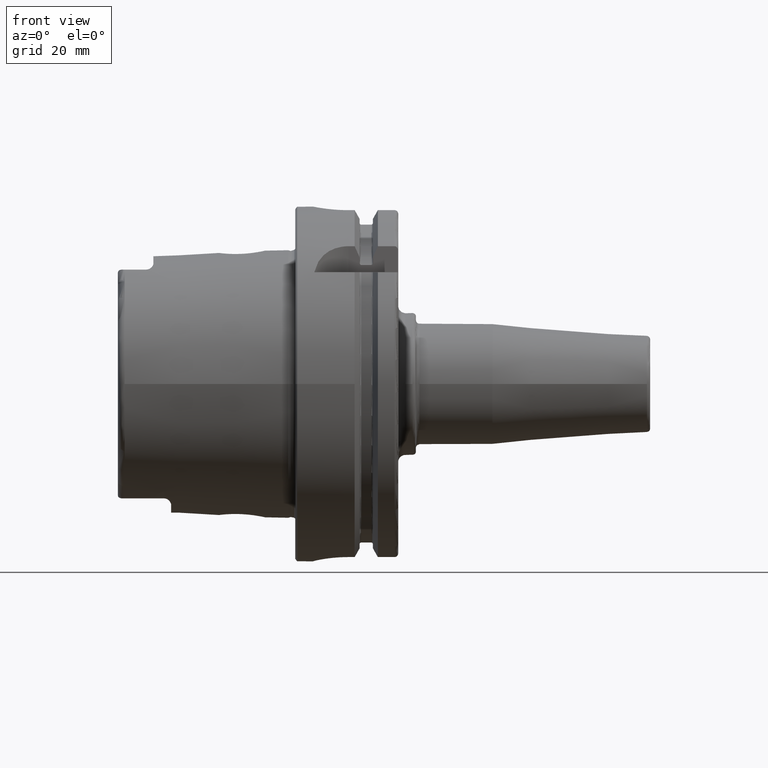
[diagram: clean part render]
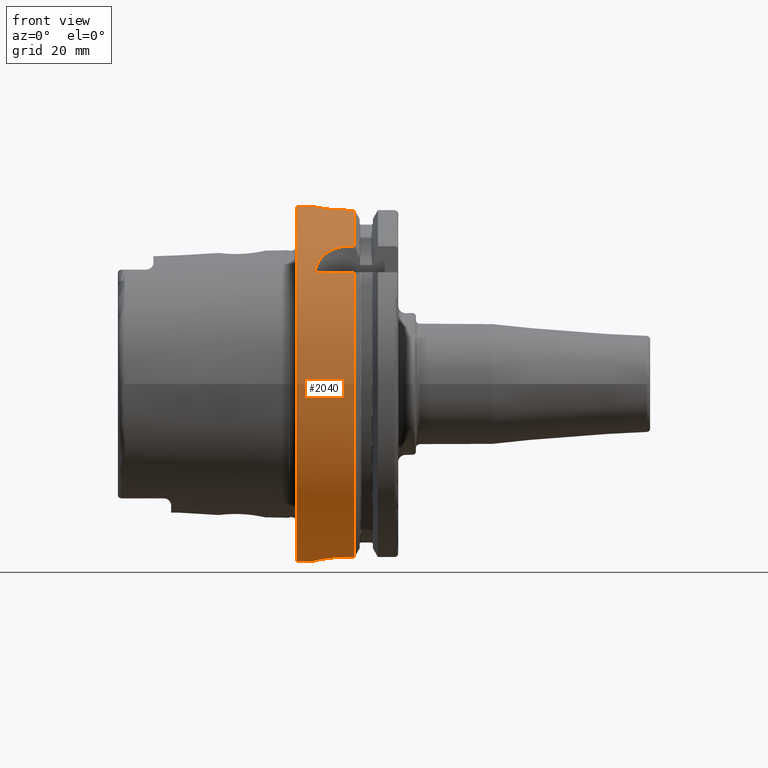
[diagram: same view with one face highlighted and labeled with its STEP entity id]
A machine part, front view. The second image highlights one B-rep face of the part: STEP entity #2040.
In plain terms, the highlighted cylindrical surface (bore or boss wall) has radius 50 mm, axis along (1, 0, 0).
Its self-contained STEP definition (entity closure, byte-faithful):
#56=B_SPLINE_CURVE_WITH_KNOTS('',3,(#3890,#3891,#3892,#3893,#3894,#3895,
#3896,#3897,#3898,#3899,#3900,#3901,#3902,#3903,#3904,#3905,#3906,#3907,
#3908,#3909,#3910,#3911,#3912,#3913,#3914,#3915),.UNSPECIFIED.,.F.,.F.,
(4,2,2,2,2,2,2,2,2,2,2,2,4),(0.,0.188478911015149,0.376957822030298,0.565436091508923,
0.753914360987547,0.942392630466172,1.1308708999448,1.31934981095995,1.50782872197509,
1.69630763299024,1.88478654400539,2.07326481348402,2.26174308296264),
 .UNSPECIFIED.);
#57=B_SPLINE_CURVE_WITH_KNOTS('',3,(#3916,#3917,#3918,#3919,#3920,#3921,
#3922,#3923,#3924,#3925),.UNSPECIFIED.,.F.,.F.,(4,2,2,2,4),(2.26174308296264,
2.45022135244127,2.63869962191989,2.82717853293504,3.01565744395019),
 .UNSPECIFIED.);
#58=B_SPLINE_CURVE_WITH_KNOTS('',3,(#3929,#3930,#3931,#3932,#3933,#3934,
#3935,#3936,#3937,#3938,#3939,#3940),.UNSPECIFIED.,.F.,.F.,(4,2,2,2,2,4),
(1.13213255574021,1.59216410027009,1.87572541272146,2.15928672517283,2.38471683342296,
2.61014694167308),.UNSPECIFIED.);
#65=B_SPLINE_CURVE_WITH_KNOTS('',3,(#4053,#4054,#4055,#4056,#4057,#4058,
#4059,#4060,#4061,#4062,#4063,#4064,#4065,#4066,#4067,#4068,#4069,#4070),
 .UNSPECIFIED.,.F.,.F.,(4,2,2,2,2,2,2,2,4),(0.,0.377795255890194,0.755590511780389,
1.13336459804459,1.51113868430879,1.88891277057299,2.26668685683718,2.64448211272738,
3.02227736861757),.UNSPECIFIED.);
#66=B_SPLINE_CURVE_WITH_KNOTS('',3,(#4078,#4079,#4080,#4081,#4082,#4083,
#4084,#4085,#4086,#4087),.UNSPECIFIED.,.F.,.F.,(4,2,2,2,4),(0.,0.377863193874929,
0.755726387749858,1.13417752669663,1.51262866564341),.UNSPECIFIED.);
#67=B_SPLINE_CURVE_WITH_KNOTS('',3,(#4091,#4092,#4093,#4094,#4095,#4096,
#4097,#4098,#4099,#4100),.UNSPECIFIED.,.F.,.F.,(4,2,2,2,4),(1.50996806152532,
1.8884192004721,2.26687033941887,2.6447335332938,3.02259672716873),
 .UNSPECIFIED.);
#94=FACE_BOUND('',#387,.T.);
#190=CYLINDRICAL_SURFACE('',#2251,50.);
#256=FACE_OUTER_BOUND('',#386,.T.);
#386=EDGE_LOOP('',(#1592,#1593,#1594,#1595,#1596,#1597,#1598,#1599,#1600,
#1601,#1602,#1603,#1604,#1605,#1606,#1607,#1608,#1609));
#387=EDGE_LOOP('',(#1610,#1611));
#512=LINE('',#3946,#618);
#518=LINE('',#3998,#624);
#523=LINE('',#4051,#629);
#524=LINE('',#4072,#630);
#525=LINE('',#4076,#631);
#526=LINE('',#4102,#632);
#527=LINE('',#4106,#633);
#618=VECTOR('',#2670,10.);
#624=VECTOR('',#2678,10.);
#629=VECTOR('',#2687,10.);
#630=VECTOR('',#2688,10.);
#631=VECTOR('',#2691,10.);
#632=VECTOR('',#2694,10.);
#633=VECTOR('',#2697,50.);
#739=CIRCLE('',#2252,50.);
#740=CIRCLE('',#2253,50.);
#741=CIRCLE('',#2254,50.);
#742=CIRCLE('',#2255,50.);
#743=CIRCLE('',#2256,50.);
#744=CIRCLE('',#2257,50.);
#918=VERTEX_POINT('',#3887);
#919=VERTEX_POINT('',#3889);
#920=VERTEX_POINT('',#3927);
#921=VERTEX_POINT('',#3928);
#923=VERTEX_POINT('',#3945);
#932=VERTEX_POINT('',#3997);
#941=VERTEX_POINT('',#4048);
#942=VERTEX_POINT('',#4050);
#943=VERTEX_POINT('',#4052);
#944=VERTEX_POINT('',#4071);
#945=VERTEX_POINT('',#4073);
#946=VERTEX_POINT('',#4075);
#947=VERTEX_POINT('',#4077);
#948=VERTEX_POINT('',#4088);
#949=VERTEX_POINT('',#4090);
#950=VERTEX_POINT('',#4101);
#951=VERTEX_POINT('',#4103);
#952=VERTEX_POINT('',#4105);
#1161=EDGE_CURVE('',#919,#918,#56,.T.);
#1162=EDGE_CURVE('',#918,#919,#57,.T.);
#1163=EDGE_CURVE('',#920,#921,#58,.T.);
#1166=EDGE_CURVE('',#921,#923,#512,.T.);
#1177=EDGE_CURVE('',#932,#920,#518,.T.);
#1187=EDGE_CURVE('',#941,#923,#739,.T.);
#1188=EDGE_CURVE('',#941,#942,#523,.T.);
#1189=EDGE_CURVE('',#942,#943,#65,.T.);
#1190=EDGE_CURVE('',#943,#944,#524,.T.);
#1191=EDGE_CURVE('',#945,#944,#740,.T.);
#1192=EDGE_CURVE('',#945,#946,#525,.T.);
#1193=EDGE_CURVE('',#946,#947,#66,.T.);
#1194=EDGE_CURVE('',#947,#948,#741,.T.);
#1195=EDGE_CURVE('',#948,#949,#67,.T.);
#1196=EDGE_CURVE('',#949,#950,#526,.T.);
#1197=EDGE_CURVE('',#951,#950,#742,.T.);
#1198=EDGE_CURVE('',#951,#952,#527,.T.);
#1199=EDGE_CURVE('',#952,#952,#743,.T.);
#1200=EDGE_CURVE('',#932,#951,#744,.T.);
#1592=ORIENTED_EDGE('',*,*,#1177,.T.);
#1593=ORIENTED_EDGE('',*,*,#1163,.T.);
#1594=ORIENTED_EDGE('',*,*,#1166,.T.);
#1595=ORIENTED_EDGE('',*,*,#1187,.F.);
#1596=ORIENTED_EDGE('',*,*,#1188,.T.);
#1597=ORIENTED_EDGE('',*,*,#1189,.T.);
#1598=ORIENTED_EDGE('',*,*,#1190,.T.);
#1599=ORIENTED_EDGE('',*,*,#1191,.F.);
#1600=ORIENTED_EDGE('',*,*,#1192,.T.);
#1601=ORIENTED_EDGE('',*,*,#1193,.T.);
#1602=ORIENTED_EDGE('',*,*,#1194,.T.);
#1603=ORIENTED_EDGE('',*,*,#1195,.T.);
#1604=ORIENTED_EDGE('',*,*,#1196,.T.);
#1605=ORIENTED_EDGE('',*,*,#1197,.F.);
#1606=ORIENTED_EDGE('',*,*,#1198,.T.);
#1607=ORIENTED_EDGE('',*,*,#1199,.T.);
#1608=ORIENTED_EDGE('',*,*,#1198,.F.);
#1609=ORIENTED_EDGE('',*,*,#1200,.F.);
#1610=ORIENTED_EDGE('',*,*,#1161,.T.);
#1611=ORIENTED_EDGE('',*,*,#1162,.T.);
#2040=ADVANCED_FACE('',(#256,#94),#190,.T.);
#2251=AXIS2_PLACEMENT_3D('',#4047,#2683,#2684);
#2252=AXIS2_PLACEMENT_3D('',#4049,#2685,#2686);
#2253=AXIS2_PLACEMENT_3D('',#4074,#2689,#2690);
#2254=AXIS2_PLACEMENT_3D('',#4089,#2692,#2693);
#2255=AXIS2_PLACEMENT_3D('',#4104,#2695,#2696);
#2256=AXIS2_PLACEMENT_3D('',#4107,#2698,#2699);
#2257=AXIS2_PLACEMENT_3D('',#4108,#2700,#2701);
#2670=DIRECTION('',(1.,0.,0.));
#2678=DIRECTION('',(-1.,0.,0.));
#2683=DIRECTION('center_axis',(1.,0.,0.));
#2684=DIRECTION('ref_axis',(0.,1.,0.));
#2685=DIRECTION('center_axis',(1.,0.,0.));
#2686=DIRECTION('ref_axis',(0.,0.,-1.));
#2687=DIRECTION('',(-1.,0.,0.));
#2688=DIRECTION('',(1.,0.,0.));
#2689=DIRECTION('center_axis',(1.,0.,0.));
#2690=DIRECTION('ref_axis',(0.,0.,-1.));
#2691=DIRECTION('',(-1.,0.,0.));
#2692=DIRECTION('center_axis',(-1.,0.,0.));
#2693=DIRECTION('ref_axis',(0.,1.,0.));
#2694=DIRECTION('',(1.,0.,0.));
#2695=DIRECTION('center_axis',(1.,0.,0.));
#2696=DIRECTION('ref_axis',(0.,0.,-1.));
#2697=DIRECTION('',(-1.,0.,0.));
#2698=DIRECTION('center_axis',(1.,0.,0.));
#2699=DIRECTION('ref_axis',(0.,0.,-1.));
#2700=DIRECTION('center_axis',(1.,0.,0.));
#2701=DIRECTION('ref_axis',(0.,0.,-1.));
#3887=CARTESIAN_POINT('',(12.,50.,-6.12323399573677E-16));
#3889=CARTESIAN_POINT('',(6.99999999999999,49.749371855331,5.));
#3890=CARTESIAN_POINT('Ctrl Pts',(6.99999999999999,49.749371855331,5.));
#3891=CARTESIAN_POINT('Ctrl Pts',(6.37173696328283,49.749371855331,5.));
#3892=CARTESIAN_POINT('Ctrl Pts',(5.70188570880885,49.7624993987098,4.87435544587055));
#3893=CARTESIAN_POINT('Ctrl Pts',(4.4701142477173,49.8098541153698,4.36395693611591));
#3894=CARTESIAN_POINT('Ctrl Pts',(3.90815809537484,49.8433908660961,3.97922590724033));
#3895=CARTESIAN_POINT('Ctrl Pts',(3.02077560297968,49.9062957431473,3.09184341484517));
#3896=CARTESIAN_POINT('Ctrl Pts',(2.63604339567929,49.9397591808605,2.52988660036719));
#3897=CARTESIAN_POINT('Ctrl Pts',(2.12564400622109,49.9869460568296,1.29811292154946));
#3898=CARTESIAN_POINT('Ctrl Pts',(1.99999999999999,50.,0.628260898262081));
#3899=CARTESIAN_POINT('Ctrl Pts',(1.99999999999999,50.,-0.628260898262082));
#3900=CARTESIAN_POINT('Ctrl Pts',(2.12564400622109,49.9869460568296,-1.29811292154946));
#3901=CARTESIAN_POINT('Ctrl Pts',(2.63604339567929,49.9397591808605,-2.52988660036719));
#3902=CARTESIAN_POINT('Ctrl Pts',(3.02077560297968,49.9062957431473,-3.09184341484517));
#3903=CARTESIAN_POINT('Ctrl Pts',(3.90815809537484,49.8433908660961,-3.97922590724033));
#3904=CARTESIAN_POINT('Ctrl Pts',(4.4701142477173,49.8098541153698,-4.36395693611591));
#3905=CARTESIAN_POINT('Ctrl Pts',(5.70188570880885,49.7624993987098,-4.87435544587055));
#3906=CARTESIAN_POINT('Ctrl Pts',(6.37173696328283,49.749371855331,-5.));
#3907=CARTESIAN_POINT('Ctrl Pts',(7.62826303671716,49.749371855331,-5.));
#3908=CARTESIAN_POINT('Ctrl Pts',(8.29811429119113,49.7624993987098,-4.87435544587055));
#3909=CARTESIAN_POINT('Ctrl Pts',(9.52988575228269,49.8098541153698,-4.36395693611591));
#3910=CARTESIAN_POINT('Ctrl Pts',(10.0918419046251,49.8433908660961,-3.97922590724033));
#3911=CARTESIAN_POINT('Ctrl Pts',(10.9792243970203,49.9062957431473,-3.09184341484517));
#3912=CARTESIAN_POINT('Ctrl Pts',(11.3639566043207,49.9397591808605,-2.52988660036719));
#3913=CARTESIAN_POINT('Ctrl Pts',(11.8743559937789,49.9869460568296,-1.29811292154947));
#3914=CARTESIAN_POINT('Ctrl Pts',(12.,50.,-0.628260898262083));
#3915=CARTESIAN_POINT('Ctrl Pts',(12.,50.,-5.55111512312578E-16));
#3916=CARTESIAN_POINT('Ctrl Pts',(12.,50.,-5.55111512312578E-16));
#3917=CARTESIAN_POINT('Ctrl Pts',(12.,50.,0.628260898262082));
#3918=CARTESIAN_POINT('Ctrl Pts',(11.8743559937789,49.9869460568296,1.29811292154946));
#3919=CARTESIAN_POINT('Ctrl Pts',(11.3639566043207,49.9397591808605,2.52988660036719));
#3920=CARTESIAN_POINT('Ctrl Pts',(10.9792243970203,49.9062957431473,3.09184341484517));
#3921=CARTESIAN_POINT('Ctrl Pts',(10.0918419046251,49.8433908660961,3.97922590724033));
#3922=CARTESIAN_POINT('Ctrl Pts',(9.52988575228269,49.8098541153698,4.36395693611591));
#3923=CARTESIAN_POINT('Ctrl Pts',(8.29811429119113,49.7624993987098,4.87435544587055));
#3924=CARTESIAN_POINT('Ctrl Pts',(7.62826303671716,49.749371855331,5.));
#3925=CARTESIAN_POINT('Ctrl Pts',(6.99999999999999,49.749371855331,5.));
#3927=CARTESIAN_POINT('',(5.36310214079494,-38.8297566307078,31.5));
#3928=CARTESIAN_POINT('',(15.,-31.5,38.8297566307078));
#3929=CARTESIAN_POINT('Ctrl Pts',(5.36310214079494,-38.8297566307078,31.5));
#3930=CARTESIAN_POINT('Ctrl Pts',(5.63795050776221,-37.8378299510303,32.722738779917));
#3931=CARTESIAN_POINT('Ctrl Pts',(6.08245260240086,-36.8264130955983,33.8486741193789));
#3932=CARTESIAN_POINT('Ctrl Pts',(7.14730321206235,-35.2667182945212,35.4540138707062));
#3933=CARTESIAN_POINT('Ctrl Pts',(7.68113760815893,-34.6306580359392,36.0741351437033));
#3934=CARTESIAN_POINT('Ctrl Pts',(8.97436758466638,-33.4722127660808,37.1515365058173));
#3935=CARTESIAN_POINT('Ctrl Pts',(9.73574998094174,-32.9521170857844,37.6088911783762));
#3936=CARTESIAN_POINT('Ctrl Pts',(11.1521999725134,-32.2432973482077,38.2170233500259));
#3937=CARTESIAN_POINT('Ctrl Pts',(11.8888981504148,-31.9629772872452,38.4503075998006));
#3938=CARTESIAN_POINT('Ctrl Pts',(13.4369856471743,-31.5908755949743,38.7566077888176));
#3939=CARTESIAN_POINT('Ctrl Pts',(14.2485663058329,-31.5,38.8297566307078));
#3940=CARTESIAN_POINT('Ctrl Pts',(15.,-31.5,38.8297566307078));
#3945=CARTESIAN_POINT('',(16.7379709790786,-31.5,38.8297566307078));
#3946=CARTESIAN_POINT('',(8.61898548953931,-31.5,38.8297566307078));
#3997=CARTESIAN_POINT('',(16.7379709790786,-38.8297566307078,31.5));
#3998=CARTESIAN_POINT('',(8.61898548953931,-38.8297566307078,31.5));
#4047=CARTESIAN_POINT('Origin',(8.61898548953931,0.,0.));
#4048=CARTESIAN_POINT('',(16.7379709790786,-10.,48.9897948556636));
#4049=CARTESIAN_POINT('Origin',(16.7379709790786,0.,0.));
#4050=CARTESIAN_POINT('',(15.,-10.,48.9897948556636));
#4051=CARTESIAN_POINT('',(8.61898548953931,-10.,48.9897948556636));
#4052=CARTESIAN_POINT('',(15.,10.,48.9897948556636));
#4053=CARTESIAN_POINT('Ctrl Pts',(15.,-10.,48.9897948556636));
#4054=CARTESIAN_POINT('Ctrl Pts',(13.740682480366,-10.,48.9897948556636));
#4055=CARTESIAN_POINT('Ctrl Pts',(12.3998222283811,-9.74762796248614,49.0433876618447));
#4056=CARTESIAN_POINT('Ctrl Pts',(9.93707994969945,-8.72605417648382,49.2354150792771));
#4057=CARTESIAN_POINT('Ctrl Pts',(8.81489539818993,-7.95703102192089,49.3709085101933));
#4058=CARTESIAN_POINT('Ctrl Pts',(7.04301862271998,-6.18515424645094,49.6240337638318));
#4059=CARTESIAN_POINT('Ctrl Pts',(6.27395658455242,-5.06294861197626,49.7583347151863));
#4060=CARTESIAN_POINT('Ctrl Pts',(5.25235457764165,-2.60013306081865,49.9476188647081));
#4061=CARTESIAN_POINT('Ctrl Pts',(4.99999999999999,-1.259246954214,50.));
#4062=CARTESIAN_POINT('Ctrl Pts',(4.99999999999999,1.259246954214,50.));
#4063=CARTESIAN_POINT('Ctrl Pts',(5.25235457764165,2.60013306081865,49.9476188647081));
#4064=CARTESIAN_POINT('Ctrl Pts',(6.27395658455242,5.06294861197626,49.7583347151863));
#4065=CARTESIAN_POINT('Ctrl Pts',(7.04301862271998,6.18515424645094,49.6240337638318));
#4066=CARTESIAN_POINT('Ctrl Pts',(8.81489539818993,7.95703102192089,49.3709085101933));
#4067=CARTESIAN_POINT('Ctrl Pts',(9.93707994969945,8.72605417648382,49.2354150792771));
#4068=CARTESIAN_POINT('Ctrl Pts',(12.3998222283811,9.74762796248614,49.0433876618447));
#4069=CARTESIAN_POINT('Ctrl Pts',(13.740682480366,10.,48.9897948556636));
#4070=CARTESIAN_POINT('Ctrl Pts',(15.,10.,48.9897948556636));
#4071=CARTESIAN_POINT('',(16.7379709790786,10.,48.9897948556636));
#4072=CARTESIAN_POINT('',(8.61898548953931,10.,48.9897948556636));
#4073=CARTESIAN_POINT('',(16.7379709790786,11.,-48.7749935930288));
#4074=CARTESIAN_POINT('Origin',(16.7379709790786,0.,0.));
#4075=CARTESIAN_POINT('',(15.,11.,-48.7749935930288));
#4076=CARTESIAN_POINT('',(8.61898548953931,11.,-48.7749935930288));
#4077=CARTESIAN_POINT('',(4.99999999999999,0.999999999999997,-49.9899989998));
#4078=CARTESIAN_POINT('Ctrl Pts',(15.,11.,-48.7749935930288));
#4079=CARTESIAN_POINT('Ctrl Pts',(13.7404560204169,11.,-48.7749935930288));
#4080=CARTESIAN_POINT('Ctrl Pts',(12.3998213084084,10.7475295248871,-48.8340306344483));
#4081=CARTESIAN_POINT('Ctrl Pts',(9.9383361278342,9.72667325975831,-49.0475663096823));
#4082=CARTESIAN_POINT('Ctrl Pts',(8.81713821454868,8.95850056252305,-49.1990678796225));
#4083=CARTESIAN_POINT('Ctrl Pts',(7.04551978193545,7.18842719108522,-49.4887060645896));
#4084=CARTESIAN_POINT('Ctrl Pts',(6.27594389465425,6.06650925178,-49.6460359942126));
#4085=CARTESIAN_POINT('Ctrl Pts',(5.25307325920197,3.60309260864685,-49.8853600567865));
#4086=CARTESIAN_POINT('Ctrl Pts',(4.99999999999999,2.26125147049483,-49.9647689238702));
#4087=CARTESIAN_POINT('Ctrl Pts',(4.99999999999999,1.,-49.9899989998));
#4088=CARTESIAN_POINT('',(4.99999999999999,-1.00000000000001,-49.9899989998));
#4089=CARTESIAN_POINT('Origin',(4.99999999999999,0.,0.));
#4090=CARTESIAN_POINT('',(15.,-11.,-48.7749935930288));
#4091=CARTESIAN_POINT('Ctrl Pts',(4.99999999999999,-1.,-49.9899989998));
#4092=CARTESIAN_POINT('Ctrl Pts',(4.99999999999999,-2.26125147049483,-49.9647689238702));
#4093=CARTESIAN_POINT('Ctrl Pts',(5.25307325920197,-3.60309260864686,-49.8853600567865));
#4094=CARTESIAN_POINT('Ctrl Pts',(6.27594389465425,-6.06650925178001,-49.6460359942126));
#4095=CARTESIAN_POINT('Ctrl Pts',(7.04551978193545,-7.18842719108522,-49.4887060645896));
#4096=CARTESIAN_POINT('Ctrl Pts',(8.81713821454868,-8.95850056252306,-49.1990678796225));
#4097=CARTESIAN_POINT('Ctrl Pts',(9.9383361278342,-9.72667325975831,-49.0475663096823));
#4098=CARTESIAN_POINT('Ctrl Pts',(12.3998213084084,-10.7475295248871,-48.8340306344483));
#4099=CARTESIAN_POINT('Ctrl Pts',(13.7404560204169,-11.,-48.7749935930288));
#4100=CARTESIAN_POINT('Ctrl Pts',(15.,-11.,-48.7749935930288));
#4101=CARTESIAN_POINT('',(16.7379709790786,-11.,-48.7749935930288));
#4102=CARTESIAN_POINT('',(8.61898548953931,-11.,-48.7749935930288));
#4103=CARTESIAN_POINT('',(16.7379709790786,-50.,-6.12323399573677E-15));
#4104=CARTESIAN_POINT('Origin',(16.7379709790786,0.,0.));
#4105=CARTESIAN_POINT('',(0.5,-50.,-6.12323399573677E-15));
#4106=CARTESIAN_POINT('',(8.61898548953931,-50.,-6.12323399573677E-15));
#4107=CARTESIAN_POINT('Origin',(0.5,0.,0.));
#4108=CARTESIAN_POINT('Origin',(16.7379709790786,0.,0.));